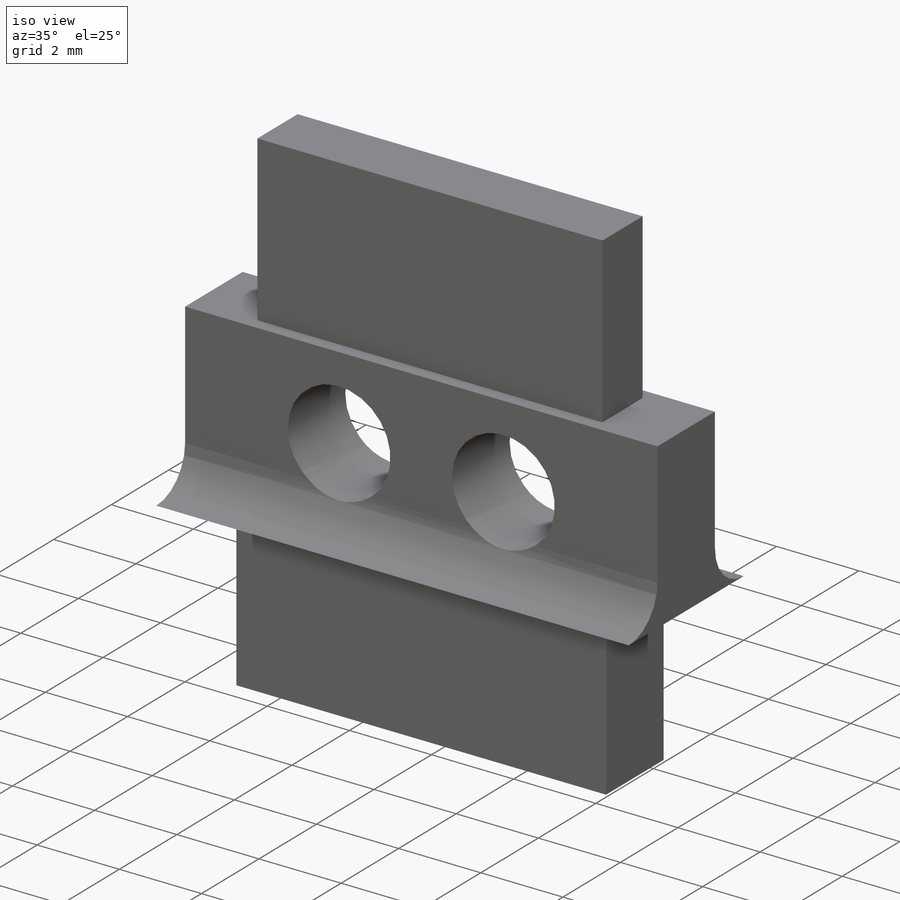
[diagram: iso view]
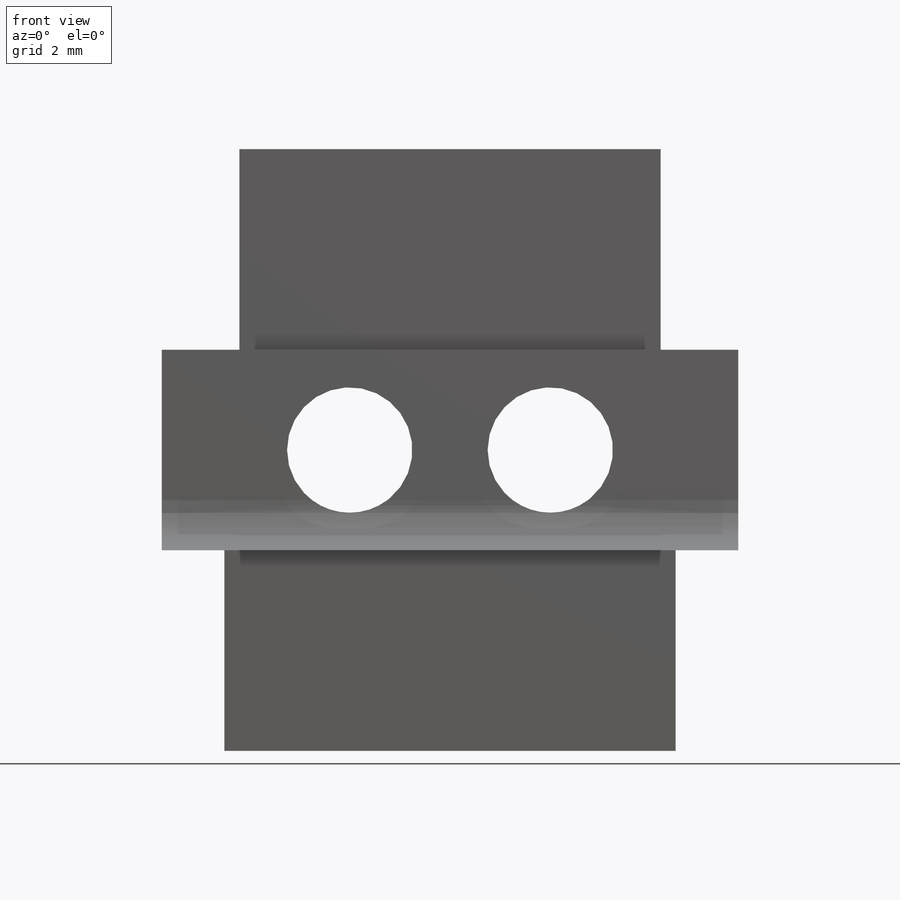
[diagram: front view]
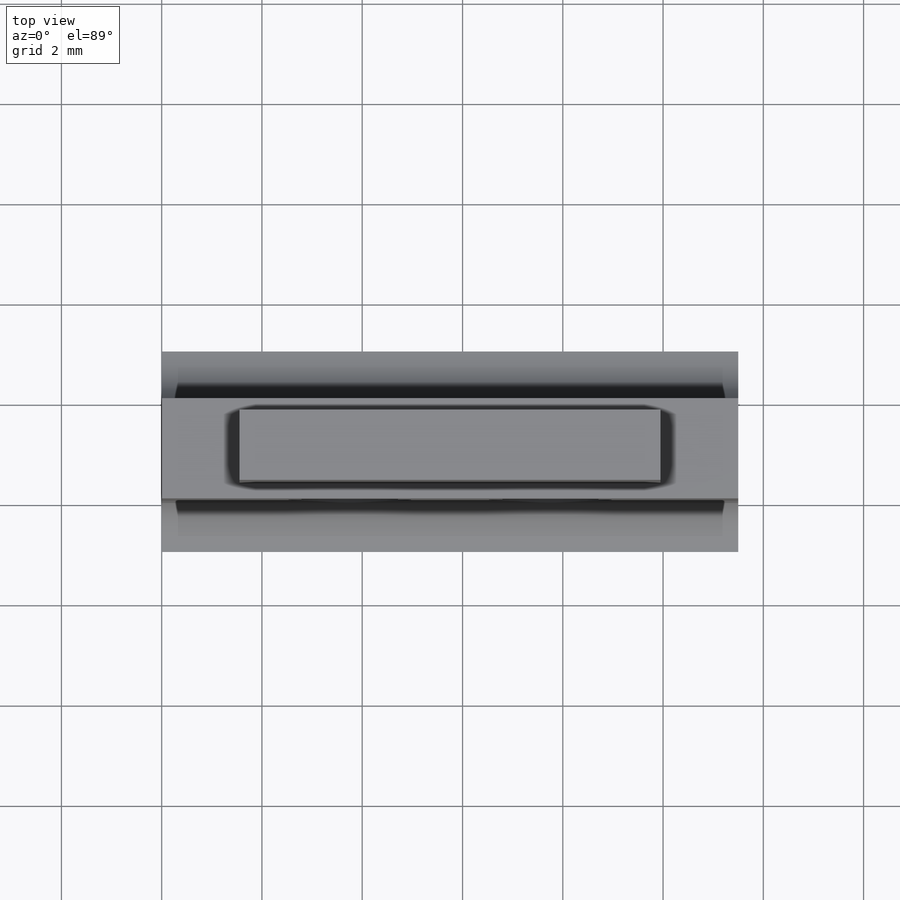
[diagram: top view]
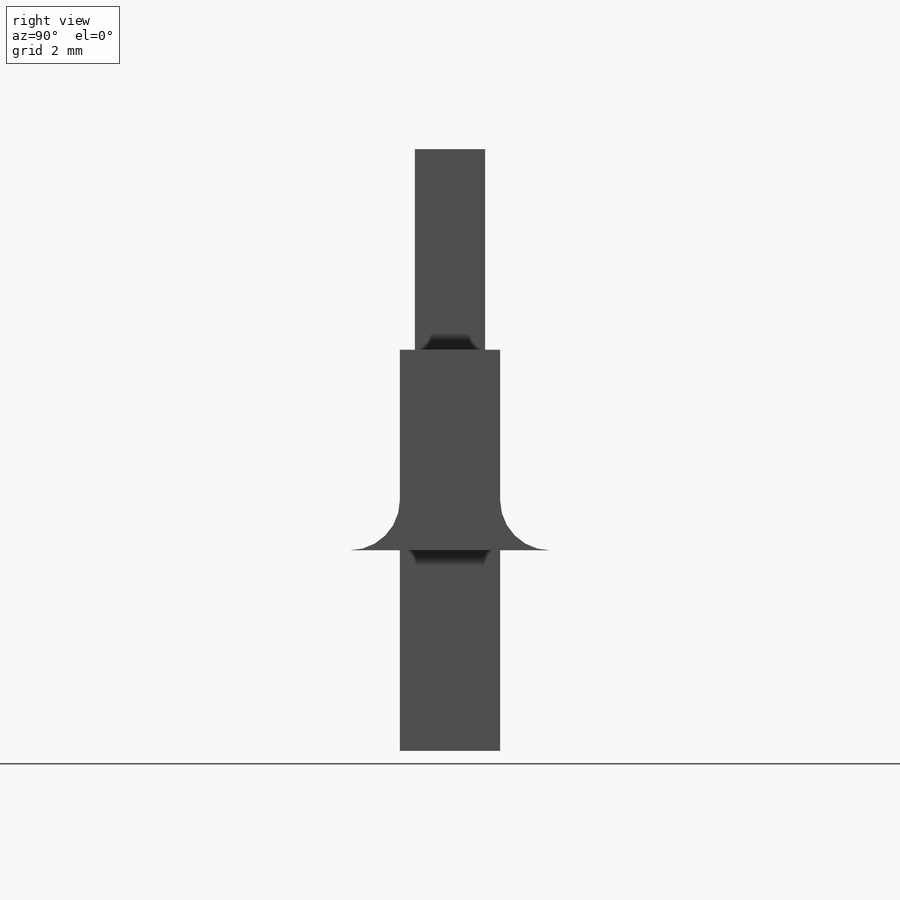
[diagram: right view]
SOLIDWORKS PART (.sldprt)
format: sldprt  version: not decoded by parser v0  size: 329,216 bytes
history: native  units: mm
features: sketch x4, extrude x2, cut_extrude x2, material x1 (+13 scaffold rows collapsed)
feature tree (22):
  scaffold x13  (default folders/planes/origin — collapsed)
  material  "Material <not specified>"
  sketch  "Model"  dims[c1.D1=4.0mm c1.D2=~1950.926809mm c1.D3=~1952.176809mm c1.D4=~1954.176809mm c1.D5=~1959.176809mm c1.D6=~1961.176809mm c1.D7=~1962.426809mm c2.D2=~1950.926809mm c2.D3=~1959.176809mm c2.D5=~1961.176809mm c2.D6=~1454.884116mm c2.D7=~1458.884116mm c2.D8=~1460.884116mm c2.D9=~1462.884116mm c2.D10=~1466.884116mm c3.D6=~1454.884116mm c3.D7=~1458.884116mm c3.D2=3.25mm c3.D3=8.25mm c3.D4=10.25mm c3.D5=11.5mm c4.D2=3.25mm c4.D3=8.25mm c4.D4=10.25mm c4.D5=4.0mm c4.D6=6.0mm c4.D7=8.0mm c4.D8=12.0mm c5.D5=4.0mm c5.D4=~9.00072mm c6.D5=4.0mm c6.D2=2.0mm c6.D3=2.5mm c6.D6=2.5mm]
  extrude  "Boss-Extrude1"  Depth=2mm
  sketch  "Sketch1"  dims[D1=1.0mm D2=1.0mm D3=4.0mm D4=1.0mm D5=2.0mm]
  extrude  "Boss-Extrude2"  [1 undecoded]
  sketch  "Sketch2"  dims[D1=3.75mm]
  cut_extrude  "Cut-Extrude1"  Depth=11.5mm
  sketch  "Sketch3"  dims[D1=0.3mm D2=0.3mm D3=0.3mm D4=0.3mm]
  cut_extrude  "Cut-Extrude2"  Depth=4mm
decode coverage: 7 of 8 modeling features carry decoded parameters
note: ~ marks probable driven/reference dimensions
note: 1 parameter value undecoded
note: suppression state not decoded; provenance and decode notes live in map.json
